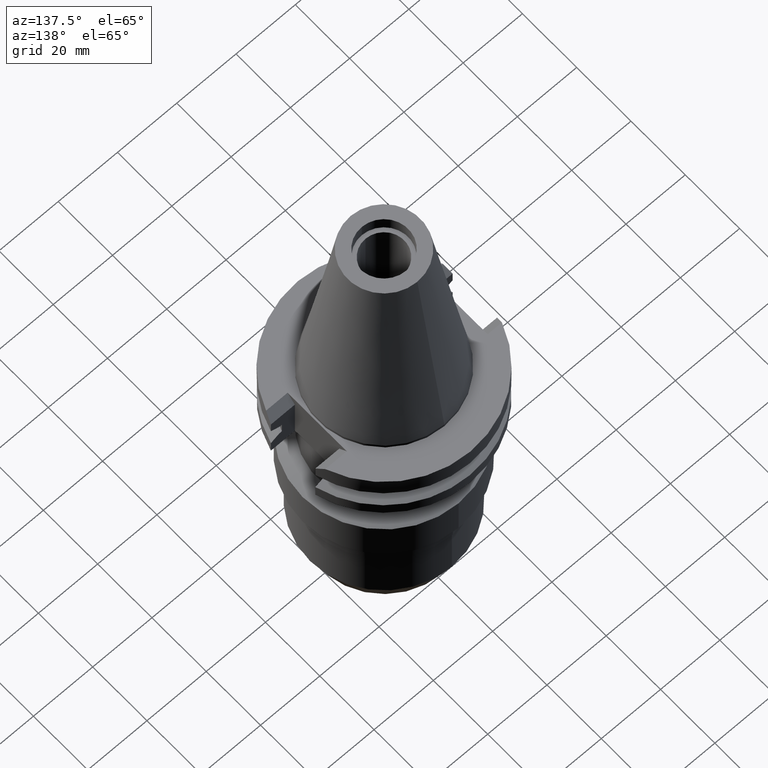
[diagram: clean part render]
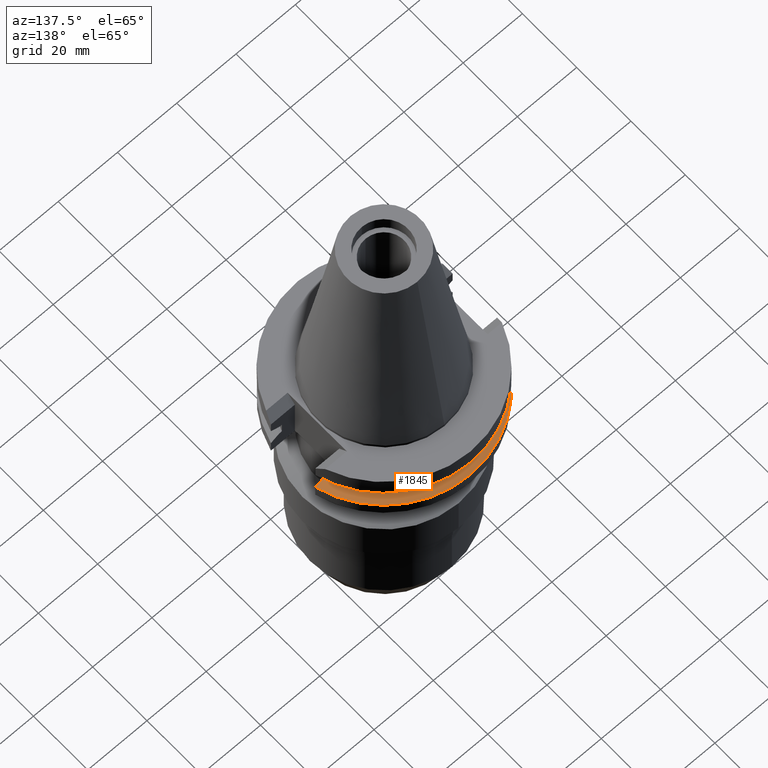
[diagram: same view with one face highlighted and labeled with its STEP entity id]
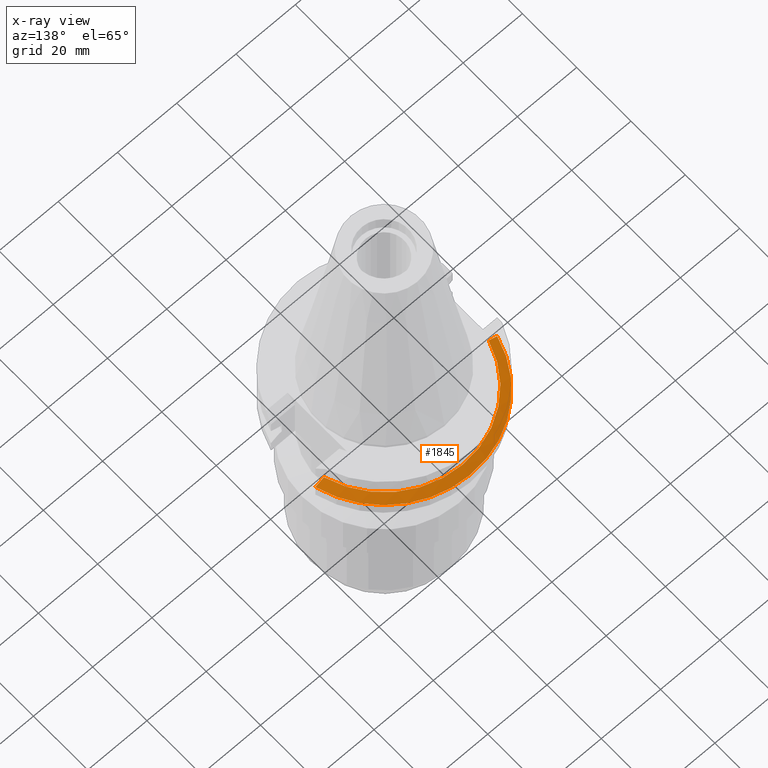
[diagram: x-ray of the same camera — body ghosted, the highlighted face saturated]
A machine part, auxiliary view. The second image highlights one B-rep face of the part: STEP entity #1845.
The next image is the same camera in x-ray: the body ghosted, the highlighted face saturated — about 0% of this face is hidden behind the body in this view.
In plain terms, the highlighted conical surface has half-angle 60 deg.
Its self-contained STEP definition (entity closure, byte-faithful):
#417=CARTESIAN_POINT('',(3.067550165946E1,8.189999874253E0,-1.465366564539E1));
#418=CARTESIAN_POINT('',(3.034685955091E1,8.189999874253E0,-1.447034535940E1));
#419=CARTESIAN_POINT('',(2.969465088348E1,8.189999973376E0,-1.410692875648E1));
#420=CARTESIAN_POINT('',(2.873155242100E1,8.190000281805E0,-1.357152156130E1));
#421=CARTESIAN_POINT('',(2.809960972051E1,8.189999360205E0,-1.322107741698E1));
#422=CARTESIAN_POINT('',(2.778617704742E1,8.189999360205E0,-1.30475E1));
#427=CARTESIAN_POINT('',(-2.778616453835E1,8.190000190932E0,-1.30475E1));
#428=CARTESIAN_POINT('',(-2.809960953962E1,8.190000190932E0,-1.322108423967E1));
#429=CARTESIAN_POINT('',(-2.873154722783E1,8.189999991754E0,-1.357151584007E1));
#430=CARTESIAN_POINT('',(-2.969464923443E1,8.189999742463E0,-1.410692517596E1));
#431=CARTESIAN_POINT('',(-3.034685342039E1,8.190000606418E0,-1.447034859502E1));
#432=CARTESIAN_POINT('',(-3.067550146398E1,8.190000606418E0,-1.465367218814E1));
#437=CARTESIAN_POINT('',(0.E0,1.055026073065E-14,-1.465366676908E1));
#438=DIRECTION('',(0.E0,0.E0,-1.E0));
#439=DIRECTION('',(-9.661575315241E-1,2.579527559055E-1,0.E0));
#440=AXIS2_PLACEMENT_3D('',#437,#438,#439);
#445=CARTESIAN_POINT('',(0.E0,1.055026073065E-14,-1.465366676908E1));
#446=DIRECTION('',(0.E0,0.E0,-1.E0));
#447=DIRECTION('',(0.E0,1.E0,0.E0));
#448=AXIS2_PLACEMENT_3D('',#445,#446,#447);
#476=CARTESIAN_POINT('',(0.E0,1.055026073065E-14,-1.30475E1));
#477=DIRECTION('',(0.E0,0.E0,-1.E0));
#478=DIRECTION('',(-9.592008904640E-1,2.827253998727E-1,0.E0));
#479=AXIS2_PLACEMENT_3D('',#476,#477,#478);
#484=CARTESIAN_POINT('',(0.E0,1.055026073065E-14,-1.30475E1));
#485=DIRECTION('',(0.E0,0.E0,-1.E0));
#486=DIRECTION('',(0.E0,1.E0,0.E0));
#487=AXIS2_PLACEMENT_3D('',#484,#485,#486);
#1446=CARTESIAN_POINT('',(3.067550165946E1,8.189999874253E0,-1.465366564539E1));
#1447=VERTEX_POINT('',#1446);
#1448=CARTESIAN_POINT('',(-3.067550162589E1,8.190000000001E0,
-1.465366676908E1));
#1449=CARTESIAN_POINT('',(0.E0,3.175E1,-1.465366676908E1));
#1450=VERTEX_POINT('',#1448);
#1451=VERTEX_POINT('',#1449);
#1475=VERTEX_POINT('',#427);
#1487=VERTEX_POINT('',#422);
#1488=CARTESIAN_POINT('',(-3.537899182731E-14,2.896803755053E1,-1.30475E1));
#1489=VERTEX_POINT('',#1488);
#1830=CARTESIAN_POINT('',(0.E0,1.055026073065E-14,-1.385058338454E1));
#1831=DIRECTION('',(0.E0,0.E0,-1.E0));
#1832=DIRECTION('',(0.E0,-1.E0,0.E0));
#1833=AXIS2_PLACEMENT_3D('',#1830,#1831,#1832);
#1834=CONICAL_SURFACE('',#1833,3.035901877527E1,6.E1);
#1835=ORIENTED_EDGE('',*,*,#1713,.T.);
#1837=ORIENTED_EDGE('',*,*,#1836,.F.);
#1839=ORIENTED_EDGE('',*,*,#1838,.F.);
#1840=ORIENTED_EDGE('',*,*,#1798,.T.);
#1841=ORIENTED_EDGE('',*,*,#1822,.T.);
#1842=ORIENTED_EDGE('',*,*,#1820,.T.);
#1843=EDGE_LOOP('',(#1835,#1837,#1839,#1840,#1841,#1842));
#1844=FACE_OUTER_BOUND('',#1843,.F.);
#423=B_SPLINE_CURVE_WITH_KNOTS('',3,(#417,#418,#419,#420,#421,#422),
.UNSPECIFIED.,.F.,.F.,(4,1,1,4),(0.E0,3.333333333333E-1,6.666666666667E-1,1.E0),
.UNSPECIFIED.);
#433=B_SPLINE_CURVE_WITH_KNOTS('',3,(#427,#428,#429,#430,#431,#432),
.UNSPECIFIED.,.F.,.F.,(4,1,1,4),(0.E0,3.333333333333E-1,6.666666666667E-1,1.E0),
.UNSPECIFIED.);
#441=CIRCLE('',#440,3.175E1);
#449=CIRCLE('',#448,3.175E1);
#480=CIRCLE('',#479,2.896803755053E1);
#488=CIRCLE('',#487,2.896803755053E1);
#1713=EDGE_CURVE('',#1447,#1487,#423,.T.);
#1798=EDGE_CURVE('',#1475,#1450,#433,.T.);
#1820=EDGE_CURVE('',#1451,#1447,#449,.T.);
#1822=EDGE_CURVE('',#1450,#1451,#441,.T.);
#1836=EDGE_CURVE('',#1489,#1487,#488,.T.);
#1838=EDGE_CURVE('',#1475,#1489,#480,.T.);
#1845=ADVANCED_FACE('',(#1844),#1834,.T.);